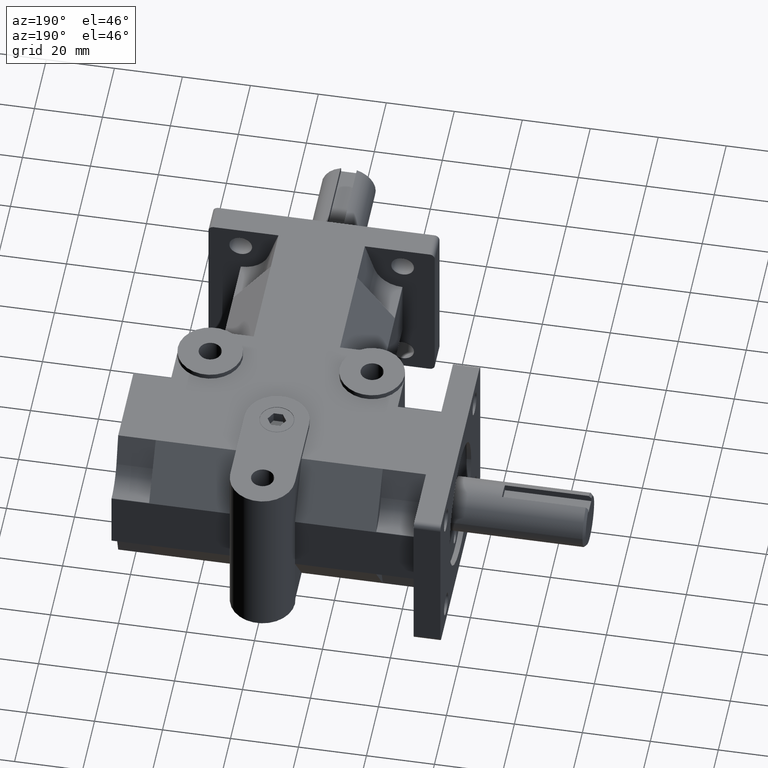
[diagram: clean part render]
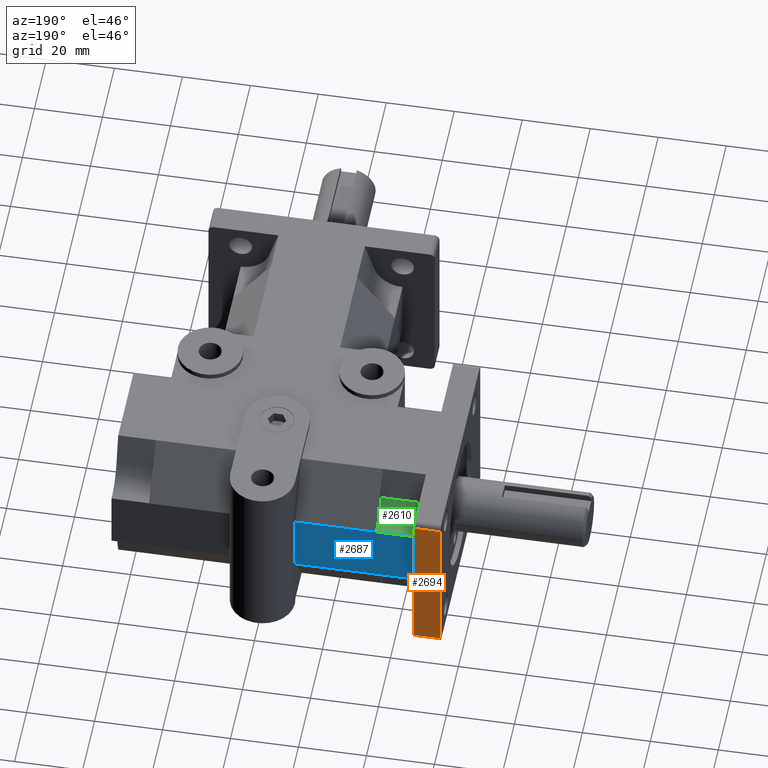
[diagram: same view with three faces highlighted in distinct colors, each labeled with its STEP entity id]
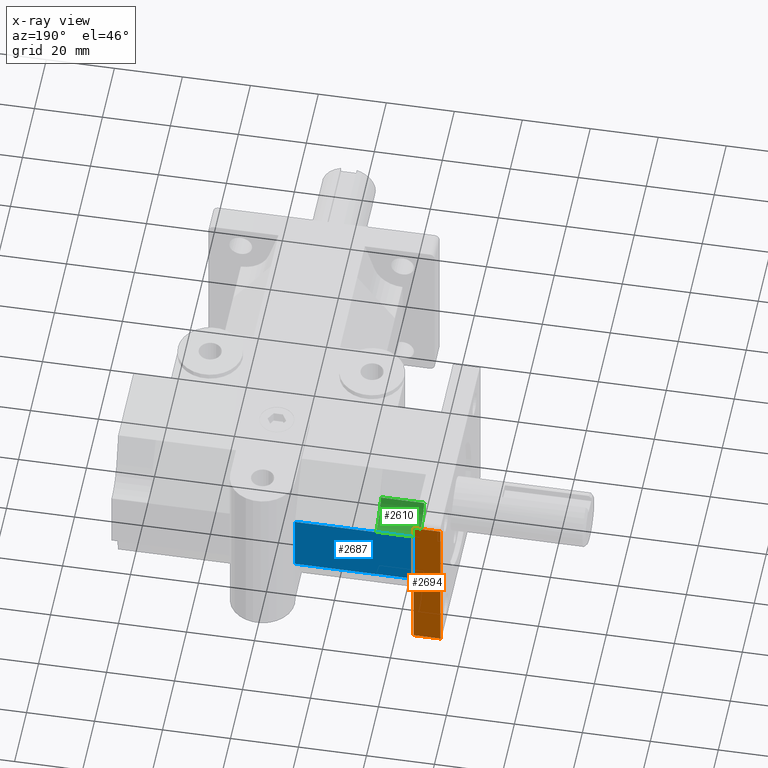
[diagram: x-ray of the same camera — body ghosted, the three highlighted faces saturated]
A machine part, auxiliary view with three faces highlighted in distinct colors.
The next image is the same camera in x-ray (body ghosted, the three faces saturated) — at least one of them is partly hidden behind the body in this view.
Their STEP definitions:

[orange] entity #2694 — the highlighted planar face has unit normal (0, 1, 0).
#151=PLANE('',#2966);
#301=FACE_OUTER_BOUND('',#486,.T.);
#486=EDGE_LOOP('',(#2479,#2480,#2481,#2482));
#501=LINE('',#3828,#766);
#503=LINE('',#3837,#768);
#520=LINE('',#3899,#785);
#633=LINE('',#4191,#898);
#766=VECTOR('',#3063,1.);
#768=VECTOR('',#3071,1.);
#785=VECTOR('',#3128,1.);
#898=VECTOR('',#3385,1.);
#1151=VERTEX_POINT('',#3825);
#1152=VERTEX_POINT('',#3827);
#1155=VERTEX_POINT('',#3834);
#1156=VERTEX_POINT('',#3836);
#1402=EDGE_CURVE('',#1151,#1152,#501,.T.);
#1406=EDGE_CURVE('',#1155,#1156,#503,.T.);
#1436=EDGE_CURVE('',#1156,#1151,#520,.T.);
#1584=EDGE_CURVE('',#1155,#1152,#633,.T.);
#2479=ORIENTED_EDGE('',*,*,#1402,.F.);
#2480=ORIENTED_EDGE('',*,*,#1436,.F.);
#2481=ORIENTED_EDGE('',*,*,#1406,.F.);
#2482=ORIENTED_EDGE('',*,*,#1584,.T.);
#2694=ADVANCED_FACE('',(#301),#151,.T.);
#2966=AXIS2_PLACEMENT_3D('',#4527,#3743,#3744);
#3063=DIRECTION('',(1.,0.,0.));
#3071=DIRECTION('',(-1.,0.,0.));
#3128=DIRECTION('',(0.,0.,-1.));
#3385=DIRECTION('',(0.,0.,-1.));
#3743=DIRECTION('center_axis',(0.,1.,0.));
#3744=DIRECTION('ref_axis',(0.,0.,-1.));
#3825=CARTESIAN_POINT('',(-2.125,4.56,-0.8775));
#3827=CARTESIAN_POINT('',(-1.815,4.56,-0.8775));
#3828=CARTESIAN_POINT('',(-0.9075,4.56,-0.8775));
#3834=CARTESIAN_POINT('',(-1.815,4.56,0.8775));
#3836=CARTESIAN_POINT('',(-2.125,4.56,0.8775));
#3837=CARTESIAN_POINT('',(-0.9075,4.56,0.8775));
#3899=CARTESIAN_POINT('',(-2.125,4.56,0.));
#4191=CARTESIAN_POINT('',(-1.815,4.56,0.));
#4527=CARTESIAN_POINT('Origin',(-1.815,4.56,0.));

[blue] entity #2687 — the highlighted planar face has unit normal (0, 1, 0).
#144=PLANE('',#2959);
#294=FACE_OUTER_BOUND('',#479,.T.);
#479=EDGE_LOOP('',(#2414,#2415,#2416,#2417));
#625=LINE('',#4171,#890);
#636=LINE('',#4195,#901);
#719=LINE('',#4451,#984);
#750=LINE('',#4514,#1015);
#890=VECTOR('',#3365,1.);
#901=VECTOR('',#3388,1.);
#984=VECTOR('',#3653,1.);
#1015=VECTOR('',#3724,1.);
#1281=VERTEX_POINT('',#4168);
#1282=VERTEX_POINT('',#4170);
#1289=VERTEX_POINT('',#4193);
#1359=VERTEX_POINT('',#4450);
#1574=EDGE_CURVE('',#1281,#1282,#625,.T.);
#1587=EDGE_CURVE('',#1289,#1281,#636,.T.);
#1708=EDGE_CURVE('',#1359,#1282,#719,.T.);
#1742=EDGE_CURVE('',#1359,#1289,#750,.T.);
#2414=ORIENTED_EDGE('',*,*,#1708,.T.);
#2415=ORIENTED_EDGE('',*,*,#1574,.F.);
#2416=ORIENTED_EDGE('',*,*,#1587,.F.);
#2417=ORIENTED_EDGE('',*,*,#1742,.F.);
#2687=ADVANCED_FACE('',(#294),#144,.T.);
#2959=AXIS2_PLACEMENT_3D('',#4513,#3722,#3723);
#3365=DIRECTION('',(1.,0.,0.));
#3388=DIRECTION('',(0.,0.,-1.));
#3653=DIRECTION('',(0.,0.,-1.));
#3722=DIRECTION('center_axis',(0.,1.,0.));
#3723=DIRECTION('ref_axis',(0.,0.,-1.));
#3724=DIRECTION('',(-1.,0.,0.));
#4168=CARTESIAN_POINT('',(-1.815,4.1875,-0.34375));
#4170=CARTESIAN_POINT('',(-0.375,4.1875,-0.343749999999999));
#4171=CARTESIAN_POINT('',(-0.1875,4.1875,-0.34375));
#4193=CARTESIAN_POINT('',(-1.815,4.1875,0.34375));
#4195=CARTESIAN_POINT('',(-1.815,4.1875,0.));
#4450=CARTESIAN_POINT('',(-0.375,4.1875,0.343749999999999));
#4451=CARTESIAN_POINT('',(-0.375,4.1875,0.));
#4513=CARTESIAN_POINT('Origin',(-0.375,4.1875,0.));
#4514=CARTESIAN_POINT('',(-0.1875,4.1875,0.34375));

[green] entity #2610 — the highlighted cylindrical surface (edge-blend (fillet) strip) has radius 8.636 mm, axis along (1, 0, 0).
#217=FACE_OUTER_BOUND('',#391,.T.);
#391=EDGE_LOOP('',(#2060,#2061,#2062,#2063));
#627=LINE('',#4176,#892);
#628=LINE('',#4180,#893);
#892=VECTOR('',#3369,1.);
#893=VECTOR('',#3372,1.);
#1091=CIRCLE('',#2844,0.34);
#1092=CIRCLE('',#2845,0.34);
#1283=VERTEX_POINT('',#4174);
#1284=VERTEX_POINT('',#4175);
#1285=VERTEX_POINT('',#4177);
#1286=VERTEX_POINT('',#4179);
#1576=EDGE_CURVE('',#1283,#1284,#627,.T.);
#1577=EDGE_CURVE('',#1283,#1285,#1091,.T.);
#1578=EDGE_CURVE('',#1285,#1286,#628,.T.);
#1579=EDGE_CURVE('',#1284,#1286,#1092,.T.);
#2060=ORIENTED_EDGE('',*,*,#1576,.F.);
#2061=ORIENTED_EDGE('',*,*,#1577,.T.);
#2062=ORIENTED_EDGE('',*,*,#1578,.T.);
#2063=ORIENTED_EDGE('',*,*,#1579,.F.);
#2526=CYLINDRICAL_SURFACE('',#2843,0.34);
#2610=ADVANCED_FACE('',(#217),#2526,.F.);
#2843=AXIS2_PLACEMENT_3D('',#4173,#3367,#3368);
#2844=AXIS2_PLACEMENT_3D('',#4178,#3370,#3371);
#2845=AXIS2_PLACEMENT_3D('',#4181,#3373,#3374);
#3367=DIRECTION('center_axis',(1.,6.12303176911189E-17,0.));
#3368=DIRECTION('ref_axis',(6.12303176911189E-17,-1.,0.));
#3369=DIRECTION('',(1.,6.12303176911189E-17,0.));
#3370=DIRECTION('center_axis',(-1.,-6.12303176911189E-17,0.));
#3371=DIRECTION('ref_axis',(6.12303176911189E-17,-1.,0.));
#3372=DIRECTION('',(1.,6.12303176911189E-17,0.));
#3373=DIRECTION('center_axis',(-1.,-6.12303176911189E-17,0.));
#3374=DIRECTION('ref_axis',(6.12303176911189E-17,-1.,0.));
#4173=CARTESIAN_POINT('Origin',(-1.815,4.1875,0.6875));
#4174=CARTESIAN_POINT('',(-1.815,4.18472851878482,0.347511295934889));
#4175=CARTESIAN_POINT('',(-1.315,4.18472851878482,0.347511295934889));
#4176=CARTESIAN_POINT('',(-1.815,4.18472851878482,0.347511295934889));
#4177=CARTESIAN_POINT('',(-1.815,3.86381314304598,0.583448000330467));
#4178=CARTESIAN_POINT('Origin',(-1.815,4.1875,0.6875));
#4179=CARTESIAN_POINT('',(-1.315,3.86381314304598,0.583448000330467));
#4180=CARTESIAN_POINT('',(-1.815,3.86381314304598,0.583448000330467));
#4181=CARTESIAN_POINT('Origin',(-1.315,4.1875,0.6875));